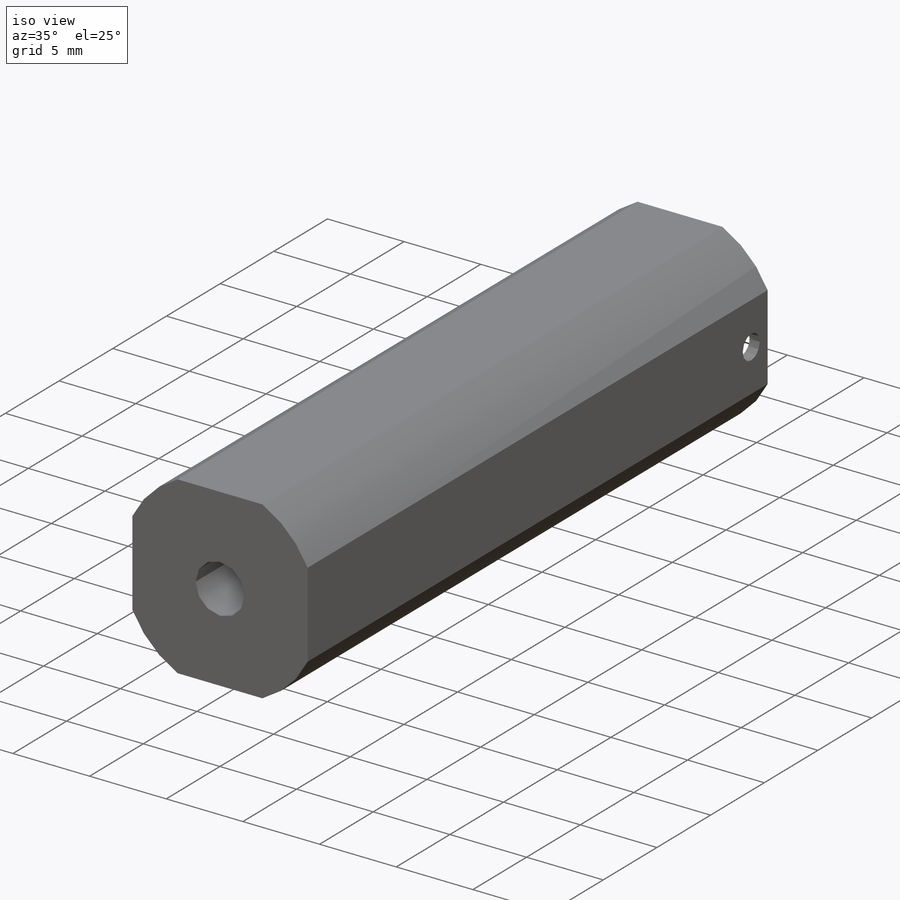
[diagram: iso view]
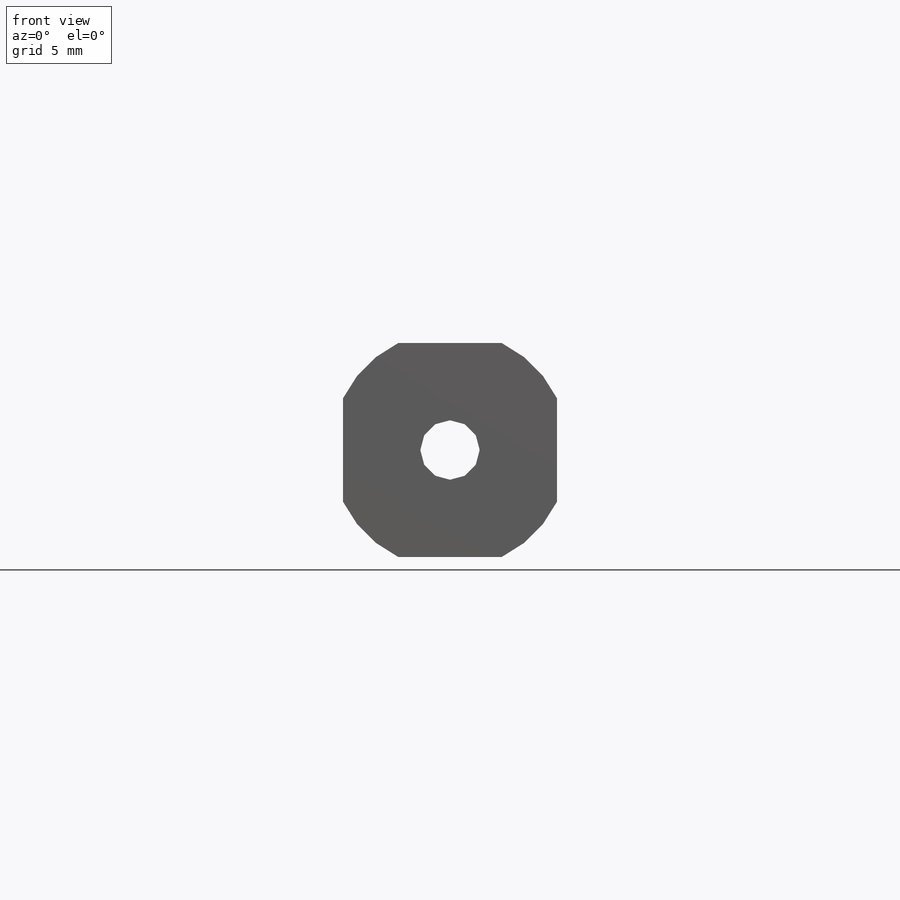
[diagram: front view]
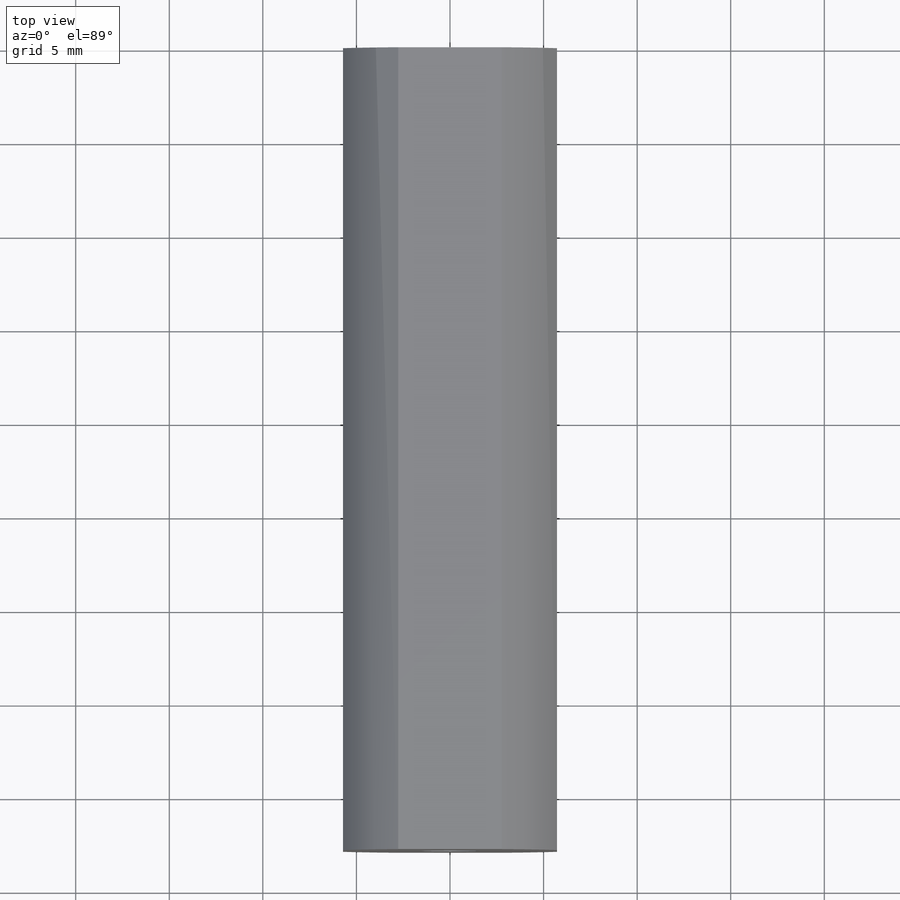
[diagram: top view]
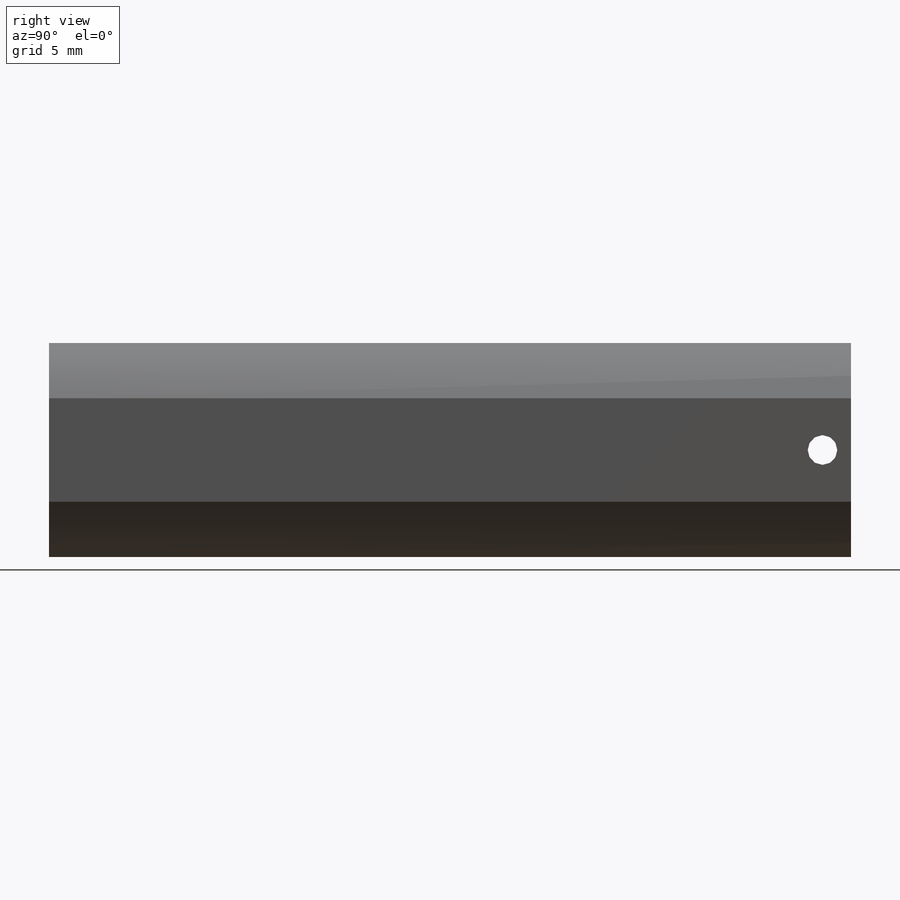
[diagram: right view]
SOLIDWORKS PART (.sldprt)
format: sldprt  version: not decoded by parser v0  size: 465,920 bytes
history: native  units: mm
features: sketch x6, hole x2, material x1, extrude x1, thread x1, cut_extrude x1 + 1 further entry (+13 scaffold rows collapsed)
feature tree (26):
  scaffold x13  (default folders/planes/origin — collapsed)
  material  "6061-T6 Al"
  "Origin"  ID=-1
  sketch  "Sketch1"  dims[c1.D2=12.7mm c1.D1=11.43mm c1.D3=2.286mm c2.D2=2.286mm c2.D3=2.286mm c3.D2=2.286mm c3.D3=5.715mm c3.D4=5.715mm c3.D5=5.715mm]
  extrude  "Boss-Extrude1"  [1 undecoded]
  thread  "Cosmetic Thread1"  Diameter=11.7mm  [1 undecoded]
  sketch  "Sketch4"  dims[D1=10.1mm]
  cut_extrude  "Cut-Extrude1"  Depth=1.524mm
  hole  "1/16 (0.0625) Diameter Hole1"  Diameter=1.5875mm Depth=11.43mm
  sketch  "Sketch10"  dims[D1=1.524mm]
  sketch  "Sketch11"  dims[hole-wizard template sketch: 60 standard entries collapsed; hole parameters kept: c18.Thru Hole Depth=11.43mm]
  hole  "1/8 (0.125) Diameter Hole2"  Diameter=3.175mm Depth=41.3258mm
  sketch  "Sketch13"
  sketch  "Sketch14"  dims[hole-wizard template sketch: 60 standard entries collapsed; hole parameters kept: c18.Thru Hole Depth=41.3258mm c19.D4=2.286mm c19.D5=2.286mm c19.D6=2.286mm c19.D7=2.286mm c19.D8=2.286mm c19.D9=2.286mm]
decode coverage: 9 of 11 modeling features carry decoded parameters; 1 rows unclassified (native names shown)
note: ~ marks probable driven/reference dimensions
note: 2 parameter values undecoded
note: suppression state not decoded; provenance and decode notes live in map.json
